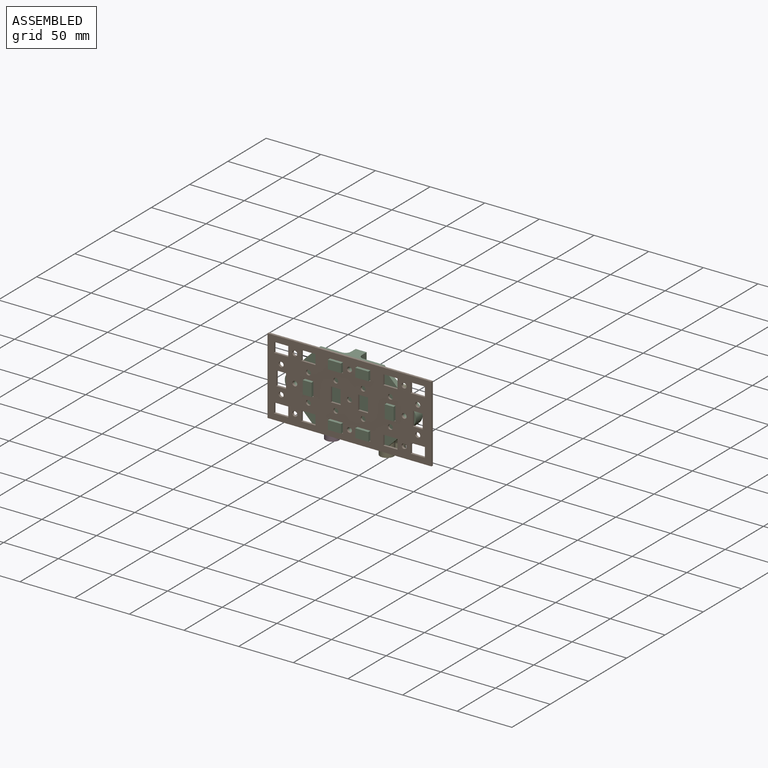
[diagram: assembled view]
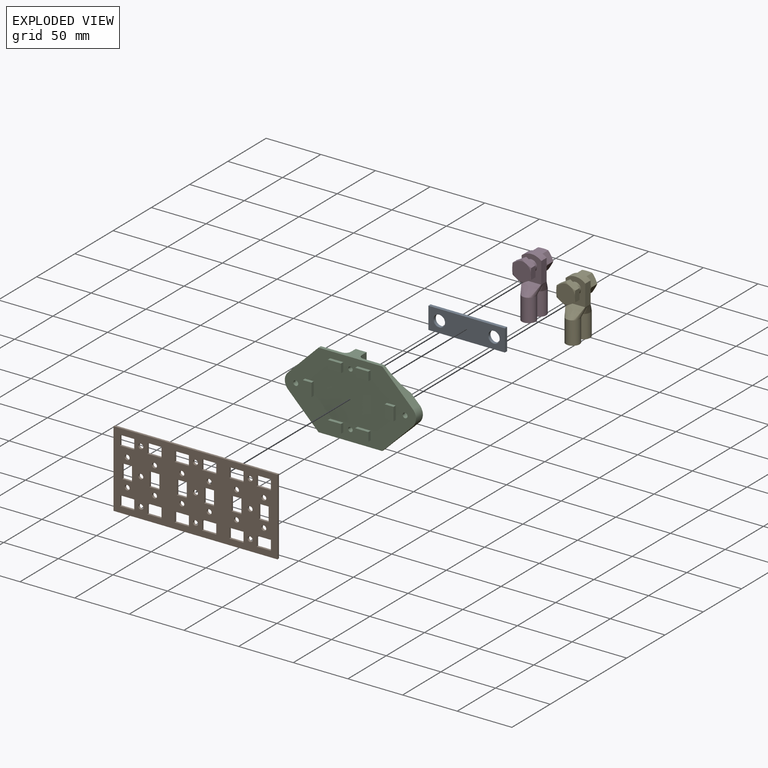
[diagram: exploded view]
GUIDED TOUR — FREECAD ASSEMBLY "PIM_cable_holder_busbar"

This assembly has 5 components, labeled P0..P4 below (a component is one placed body or linked part; the same part can appear more than once), held together by 0 modeled joints plus 8 derived contact edges. A joint is a constraint between two components; its type names the relative motion it leaves free:
  CONTACT — a derived adjacency edge — the two components touch in the source model (clearance under 2% of the assembly's diagonal); it is measured from the geometry, not a modeled constraint.
Axis/direction vectors are unit vectors and 'through' points are millimeter coordinates, both in the assembly's world frame.

MATES
  1. CONTACT "contact_0_2": P0 <-> P2, contact direction (0.000, -1.000, 0.000) through (40.17, 35.13, 34.25) mm (derived from contact, not a modeled constraint)
  2. CONTACT "contact_0_3": P0 <-> P3, contact direction (0.000, 1.000, 0.000) through (44.19, 35.24, 25.57) mm (derived from contact, not a modeled constraint)
  3. CONTACT "contact_0_4": P0 <-> P4, contact direction (0.000, 1.000, 0.000) through (94.19, 35.24, 25.57) mm (derived from contact, not a modeled constraint)
  4. CONTACT "contact_1_2": P1 <-> P2, contact direction (0.000, 1.000, 0.000) through (74.70, 26.15, -2.92) mm (derived from contact, not a modeled constraint)
  5. CONTACT "contact_1_3": P1 <-> P3, contact direction (0.000, 1.000, 0.000) through (41.51, 27.58, 18.09) mm (derived from contact, not a modeled constraint)
  6. CONTACT "contact_1_4": P1 <-> P4, contact direction (0.000, 1.000, 0.000) through (91.51, 27.58, 18.09) mm (derived from contact, not a modeled constraint)
  7. CONTACT "contact_2_3": P2 <-> P3, contact direction (-1.000, 0.000, 0.000) through (57.69, 34.85, 29.02) mm (derived from contact, not a modeled constraint)
  8. CONTACT "contact_2_4": P2 <-> P4, contact direction (1.000, 0.000, 0.000) through (107.69, 34.85, 29.02) mm (derived from contact, not a modeled constraint)

ASSEMBLY ORDER
  1. P2 — the base component [order heuristic]
  2. P0 [order verified]
  3. P1 [order verified]
  4. P3 — core [order heuristic]
  5. P4 — core [order heuristic]
Order-tag legend:
  [order verified] — this step's position reverses a verified removal order: the component was checked to insert without passing through the ones already placed.
  [order heuristic] — the first 3 components form the assembly's core: parts whose collision-free extraction could not be verified, listed in mate-graph order.

Of the 5 components, 5 carry a construction recipe — the FreeCAD feature program (sketches with constraints, then the solid features that consume them) that regenerates the part from scratch, quoted from this document or from the linked companion document it references; the rest are supplied as boundary geometry only. The tour below walks the components in assembly order: each is shown spotlighted twice — in the assembled view, then in the exploded view, where a leader line traces a displaced component back to its assembled socket (components that stay in place when exploded have no leader line; saturated green if recipe-attached, orange if geometry-only; every other component desaturated gray) — followed by its recipe or geometry summary and the mates that hold it.
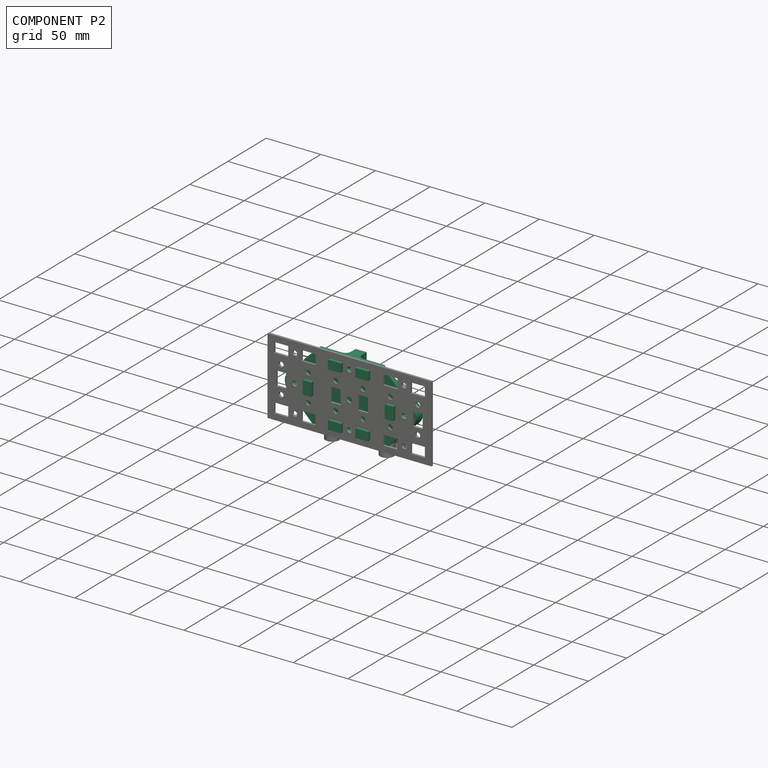
[diagram: component P2 — assembled]
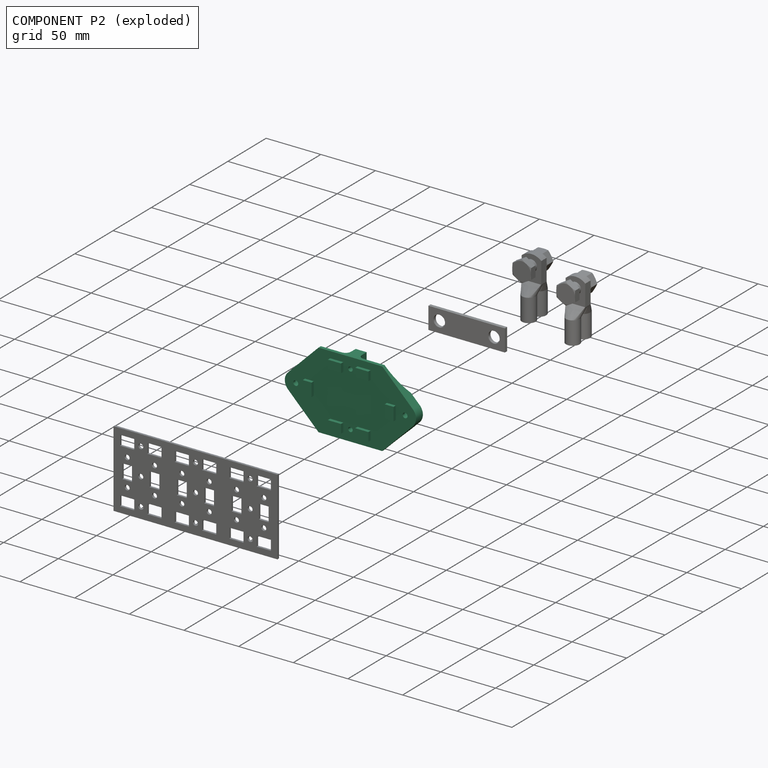
[diagram: component P2 — exploded]
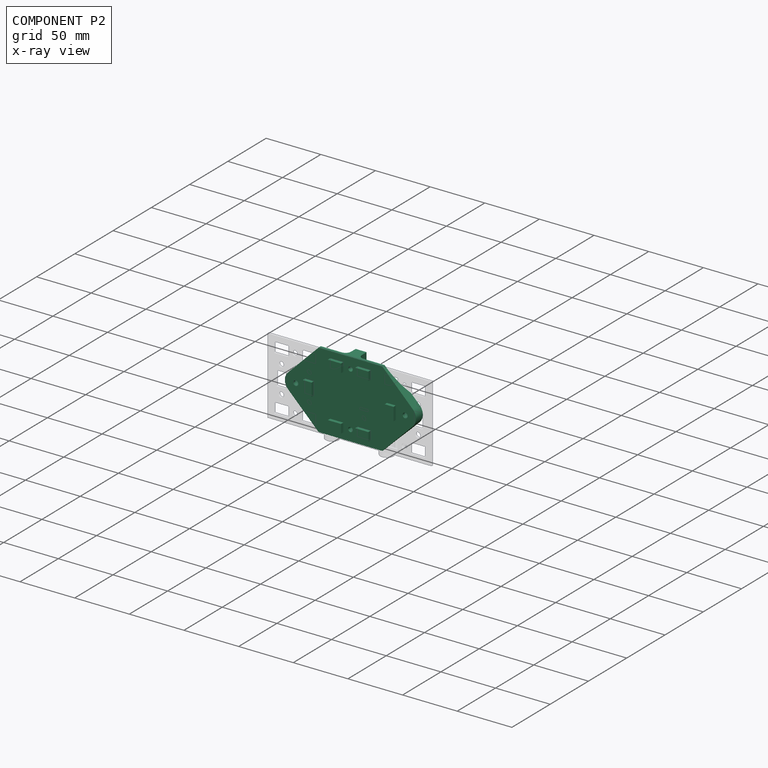
[diagram: component P2 — x-ray view]
COMPONENT P2 — recipe-attached ("holder001", modeled in this document).
Held by: resting contact with P0 (derived edge); resting contact with P1 (derived edge); resting contact with P3 (derived edge); resting contact with P4 (derived edge).
Construction recipe (the document's own serialized feature program — sketch geometry with constraints, then the solid features built on it; lengths are millimeters unless a unit is written):

FEATURE [PartDesign::SubShapeBinder] Binder
  BindCopyOnChange = 0
  BindMode = 0
  ClaimChildren = false
  Context = -> Part [Body004.Binder.]
  Fuse = false
  MakeFace = true
  OffsetFill = false
  OffsetIntersection = false
  OffsetJoinType = 0
  OffsetOpenResult = false
  PartialLoad = false
  Refine = true
  Relative = true
  Support = -> [Body[LinearPattern.Face98]]
  _Version = 2
FEATURE [Sketcher::SketchObject] Sketch003
  ArcFitTolerance = 1e-06
  AttachmentSupport = -> [Binder]
  ExternalGeometry = -> [Binder]
  FullyConstrained = true
  MakeInternals = false
  MapMode = 5
  Placement = pos=(0,2,-9e-16) rot=(0,0.707107,0.707107;3.14159rad)
  sketch-geometry (11):
    g0: LineSegment StartX=-50 StartY=-35 StartZ=0 EndX=-20.8579 EndY=-35 EndZ=0
    g1: LineSegment StartX=-20.8579 StartY=-35 StartZ=0 EndX=7.07107 EndY=-7.07107 EndZ=0
    g2: ArcOfCircle CenterX=0 CenterY=0 CenterZ=0 NormalX=0 NormalY=0 NormalZ=1 AngleXU=0 Radius=10 StartAngle=5.49779 EndAngle=7.06858
    g3: LineSegment StartX=7.07107 StartY=7.07107 StartZ=0 EndX=-20.8579 EndY=35 EndZ=0
    g4: LineSegment StartX=-20.8579 StartY=35 StartZ=0 EndX=-50 EndY=35 EndZ=0
    g5: LineSegment StartX=-50 StartY=-35 StartZ=0 EndX=-50 EndY=-27.05 EndZ=0
    g6: Circle CenterX=0 CenterY=0 CenterZ=0 NormalX=0 NormalY=0 NormalZ=1 AngleXU=0 Radius=2.25
    g7: ArcOfCircle CenterX=-50 CenterY=-25 CenterZ=0 NormalX=0 NormalY=0 NormalZ=1 AngleXU=0 Radius=2.05 StartAngle=4.71239 EndAngle=7.85398
    g8: LineSegment StartX=-50 StartY=-22.95 StartZ=0 EndX=-50 EndY=22.95 EndZ=0
    g9: ArcOfCircle CenterX=-50 CenterY=25 CenterZ=0 NormalX=0 NormalY=0 NormalZ=1 AngleXU=0 Radius=2.05 StartAngle=4.71239 EndAngle=7.85398
    g10: LineSegment StartX=-50 StartY=27.05 StartZ=0 EndX=-50 EndY=35 EndZ=0
  constraints (28):
    c: Symmetric(g-4,g-4,g0)
    c: PointOnObject(g0,g-4)
    c: Coincident(g0,g1)
    c: Coincident(g2,g-1)
    c: PointOnObject(g3,g-5)
    c: Coincident(g4,g3)
    c: Symmetric(g-5,g-5,g4)
    c: Coincident(g5,g0)
    c: Coincident(g10,g4)
    c: Coincident(g6,g2)
    c: Tangent(g6,g-3)
    c: Vertical(g0,g3)
    c: Angle(g-4,g1) = 0.785398
    c: Radius(g2) = 10
    c: Tangent(g2,g1) = -1.5708
    c: Tangent(g3,g2) = -1.5708
    c: Coincident(g7,g-7)
    c: Coincident(g5,g7)
    c: Vertical(g8)
    c: Vertical(g5)
    c: Coincident(g9,g-8)
    c: Coincident(g8,g9)
    c: Coincident(g10,g9)
    c: Vertical(g10)
    c: Vertical(g8,g9)
    c: Coincident(g7,g8)
    c: Equal(g9,g7)
    c: Radius(g7) = 2.05
FEATURE [PartDesign::Pad] Pad003
  Direction = (0,1,-2e-16)
  Length = 9
  Length2 = 10
  Profile = -> Sketch003
  ReferenceAxis = -> Sketch003 [N_Axis]
  Refine = true
  Suppressed = false
  Type = 0
FEATURE [Sketcher::SketchObject] Sketch004
  ArcFitTolerance = 1e-06
  AttachmentSupport = -> [Pad003]
  FullyConstrained = true
  MakeInternals = false
  MapMode = 5
  Placement = pos=(0,11,0) rot=(0,0.707107,0.707107;3.14159rad)
  sketch-geometry (8):
    g0: Circle CenterX=0 CenterY=0 CenterZ=0 NormalX=0 NormalY=0 NormalZ=1 AngleXU=0 Radius=4.35
    g1: LineSegment StartX=-16.1232 StartY=-5.125 StartZ=0 EndX=-16.1232 EndY=5.125 EndZ=0
    g2: LineSegment StartX=-16.1232 StartY=5.125 StartZ=0 EndX=-25 EndY=10.25 EndZ=0
    g3: LineSegment StartX=-25 StartY=10.25 StartZ=0 EndX=-33.8768 EndY=5.125 EndZ=0
    g4: LineSegment StartX=-33.8768 StartY=5.125 StartZ=0 EndX=-33.8768 EndY=-5.125 EndZ=0
    g5: LineSegment StartX=-33.8768 StartY=-5.125 StartZ=0 EndX=-25 EndY=-10.25 EndZ=0
    g6: LineSegment StartX=-25 StartY=-10.25 StartZ=0 EndX=-16.1232 EndY=-5.125 EndZ=0
    g7: Circle [constr] CenterX=-25 CenterY=0 CenterZ=0 NormalX=0 NormalY=0 NormalZ=1 AngleXU=0 Radius=10.25
  constraints (19):
    c: Diameter(g0) = 8.7
    c: Coincident(g0,g-1)
    c: Coincident(g1,g2)
    c: Coincident(g2,g3)
    c: Coincident(g3,g4)
    c: Coincident(g4,g5)
    c: Coincident(g5,g6)
    c: Coincident(g6,g1)
    c: Equal(g1, g2-g6) x5
    c: PointOnObject(g1,g7)
    c: PointOnObject(g2,g7)
    c: PointOnObject(g3,g7)
    c: PointOnObject(g4,g7)
    c: PointOnObject(g5,g7)
    c: PointOnObject(g6,g7)
    c: Vertical(g1)
    c: DistanceY(g5,g2) = 20.5
    c: PointOnObject(g7,g-1)
    c: DistanceX(g7,g0) = 25
FEATURE [PartDesign::Pocket] Pocket
  BaseFeature = -> Pad003
  Direction = (0,-1,2e-16)
  Length = 6
  Length2 = 5
  Profile = -> Sketch004
  ReferenceAxis = -> Sketch004 [N_Axis]
  Refine = true
  Suppressed = false
  Type = 0
FEATURE [Sketcher::SketchObject] Sketch005
  ArcFitTolerance = 1e-06
  AttachmentSupport = -> [Pocket]
  ExternalGeometry = -> [Pocket]
  FullyConstrained = true
  MakeInternals = false
  MapMode = 5
  Placement = pos=(50,0,0) rot=(0.57735,0.57735,0.57735;2.0944rad)
  sketch-geometry (3):
    g0: LineSegment StartX=11 StartY=-35 StartZ=0 EndX=5 EndY=-35 EndZ=0
    g1: LineSegment StartX=11 StartY=-15 StartZ=0 EndX=11 EndY=-35 EndZ=0
    g2: ArcOfCircle CenterX=39.9977 CenterY=-34.5993 CenterZ=0 NormalX=0 NormalY=0 NormalZ=1 AngleXU=0 Radius=35 StartAngle=2.54723 EndAngle=3.15304
  constraints (9):
    c: Coincident(g-5,g0)
    c: PointOnObject(g0,g-4)
    c: PointOnObject(g1,g-5)
    c: Coincident(g1,g0)
    c: DistanceX(g-4,g0) = 3
    c: Coincident(g2,g1)
    c: Coincident(g2,g0)
    c: DistanceY(g1,g1) = 20
    c: Radius(g2) = 35
FEATURE [PartDesign::Pocket] Pocket001
  BaseFeature = -> Pocket
  Direction = (-1,0,0)
  Length = 50
  Length2 = -5
  Profile = -> Sketch005
  ReferenceAxis = -> Sketch005 [N_Axis]
  Refine = true
  Suppressed = false
  Type = 4
FEATURE [Sketcher::SketchObject] Sketch007
  ArcFitTolerance = 1e-06
  ExternalGeometry = -> [Binder]
  FullyConstrained = true
  MakeInternals = false
  MapMode = 5
  Placement = pos=(0,2,0) rot=(1,0,0;1.5708rad)
  sketch-geometry (8):
    g0: LineSegment StartX=31.5 StartY=-29 StartZ=0 EndX=43.5 EndY=-29 EndZ=0
    g1: LineSegment StartX=43.5 StartY=-29 StartZ=0 EndX=43.5 EndY=-21 EndZ=0
    g2: LineSegment StartX=43.5 StartY=-21 StartZ=0 EndX=31.5 EndY=-21 EndZ=0
    g3: LineSegment StartX=31.5 StartY=-21 StartZ=0 EndX=31.5 EndY=-29 EndZ=0
    g4: LineSegment StartX=16.5 StartY=-6 StartZ=0 EndX=16.5 EndY=0 EndZ=0
    g5: LineSegment StartX=16.5 StartY=0 StartZ=0 EndX=8.5 EndY=0 EndZ=0
    g6: LineSegment StartX=8.5 StartY=0 StartZ=0 EndX=8.5 EndY=-6 EndZ=0
    g7: LineSegment StartX=8.5 StartY=-6 StartZ=0 EndX=16.5 EndY=-6 EndZ=0
  constraints (24):
    c: Coincident(g0,g1)
    c: Coincident(g1,g2)
    c: Coincident(g2,g3)
    c: Coincident(g3,g0)
    c: Horizontal(g0)
    c: Horizontal(g2)
    c: Vertical(g1)
    c: Vertical(g3)
    c: DistanceY(g1,g-4) = 0.5
    c: DistanceX(g1,g-4) = 0.5
    c: DistanceX(g-3,g0) = 0.5
    c: DistanceY(g-3,g0) = 0.5
    c: Coincident(g4,g5)
    c: Coincident(g5,g6)
    c: Coincident(g6,g7)
    c: Coincident(g7,g4)
    c: Vertical(g4)
    c: Vertical(g6)
    c: Horizontal(g5)
    c: Horizontal(g7)
    c: PointOnObject(g5,g-1)
    c: Distance(g5,g-6) = 0.5
    c: DistanceX(g4,g-5) = 0.5
    c: DistanceY(g-6,g6) = 0.5
FEATURE [PartDesign::Pad] Pad005
  BaseFeature = -> Pocket001
  Direction = (0,-1,2e-16)
  Length = 3
  Length2 = 10
  Profile = -> Sketch007
  ReferenceAxis = -> Sketch007 [N_Axis]
  Refine = true
  Suppressed = false
  Type = 0
FEATURE [Sketcher::SketchObject] Sketch008
  ArcFitTolerance = 1e-06
  AttachmentSupport = -> [XY_Plane005]
  FullyConstrained = true
  MakeInternals = false
  MapMode = 5
  sketch-geometry (7):
    g0: LineSegment StartX=14.9232 StartY=11 StartZ=0 EndX=14.9232 EndY=14.1 EndZ=0
    g1: LineSegment StartX=14.9232 StartY=14.1 StartZ=0 EndX=15.9232 EndY=14.1 EndZ=0
    g2: LineSegment StartX=15.9232 StartY=14.1 StartZ=0 EndX=15.2893 EndY=15.1981 EndZ=0
    g3: LineSegment StartX=13.4232 StartY=14.6981 StartZ=0 EndX=13.4232 EndY=12.5 EndZ=0
    g4: LineSegment StartX=14.9232 StartY=11 StartZ=0 EndX=11.9232 EndY=11 EndZ=0
    g5: ArcOfCircle CenterX=11.9232 CenterY=12.5 CenterZ=0 NormalX=0 NormalY=0 NormalZ=1 AngleXU=0 Radius=1.5 StartAngle=4.71239 EndAngle=6.28319
    g6: ArcOfCircle CenterX=14.4232 CenterY=14.6981 CenterZ=0 NormalX=0 NormalY=0 NormalZ=1 AngleXU=0 Radius=1 StartAngle=0.523599 EndAngle=3.14159
  constraints (19):
    c: PointOnObject(g0,g-4)
    c: Vertical(g0)
    c: Coincident(g1,g0)
    c: Horizontal(g1)
    c: Vertical(g3)
    c: Coincident(g4,g0)
    c: PointOnObject(g4,g-4)
    c: Tangent(g6,g2) = -1.5708
    c: Tangent(g6,g3) = -1.5708
    c: Tangent(g5,g3) = 1.5708
    c: Tangent(g5,g4) = 1.5708
    c: Radius(g5) = 1.5
    c: Distance(g0,g3) = 1.5
    c: DistanceX(g0,g-3) = 1.2
    c: Angle(g2,g1) = 1.0472
    c: Distance(g1,g1) = 1
    c: Coincident(g2,g1)
    c: Radius(g6) = 1
    c: DistanceY(g0,g0) = 3.1
FEATURE [PartDesign::SubShapeBinder] Binder001
  BindCopyOnChange = 0
  BindMode = 0
  ClaimChildren = false
  Fuse = false
  MakeFace = true
  OffsetFill = false
  OffsetIntersection = false
  OffsetJoinType = 0
  OffsetOpenResult = false
  PartialLoad = false
  Refine = true
  Relative = true
  Support = -> [Body[LinearPattern.Face98]]
  _Version = 2
FEATURE [Sketcher::SketchObject] Sketch009
  ArcFitTolerance = 1e-06
  AttachmentSupport = -> [XZ_Plane008]
  ExternalGeometry = -> [Binder001]
  FullyConstrained = true
  MakeInternals = false
  MapMode = 5
  Placement = pos=(0,0,0) rot=(1,0,0;1.5708rad)
  sketch-geometry (23):
    g0: GeomPoint [constr] X=50 Y=-1.3e-15 Z=0
    g1: LineSegment StartX=40 StartY=-13 StartZ=0 EndX=40.1 EndY=-13 EndZ=0
    g2: LineSegment StartX=60 StartY=-13 StartZ=0 EndX=60 EndY=13 EndZ=0
    g3: LineSegment StartX=60 StartY=13 StartZ=0 EndX=59.9 EndY=13 EndZ=0
    g4: LineSegment StartX=40 StartY=13 StartZ=0 EndX=40 EndY=-13 EndZ=0
    g5: GeomPoint [constr] X=50 Y=-1.3e-15 Z=0
    g6: LineSegment StartX=45 StartY=-35 StartZ=0 EndX=55 EndY=-35 EndZ=0
    g7: LineSegment StartX=55 StartY=-35 StartZ=0 EndX=55 EndY=-17.9 EndZ=0
    g8: LineSegment StartX=55 StartY=35 StartZ=0 EndX=45 EndY=35 EndZ=0
    g9: LineSegment StartX=45 StartY=35 StartZ=0 EndX=45 EndY=17.9 EndZ=0
    g10: GeomPoint [constr] X=50 Y=-1.3e-15 Z=0
    g11: LineSegment StartX=40.1 StartY=13 StartZ=0 EndX=40 EndY=13 EndZ=0
    g12: LineSegment StartX=45 StartY=-17.9 StartZ=0 EndX=45 EndY=-35 EndZ=0
    g13: LineSegment StartX=55 StartY=17.9 StartZ=0 EndX=55 EndY=35 EndZ=0
    g14: LineSegment StartX=59.9 StartY=-13 StartZ=0 EndX=60 EndY=-13 EndZ=0
    g15: ArcOfCircle CenterX=59.9 CenterY=17.9 CenterZ=0 NormalX=0 NormalY=0 NormalZ=1 AngleXU=0 Radius=4.9 StartAngle=3.14159 EndAngle=4.71239
    g16: ArcOfCircle CenterX=40.1 CenterY=17.9 CenterZ=0 NormalX=0 NormalY=0 NormalZ=1 AngleXU=0 Radius=4.9 StartAngle=4.71239 EndAngle=6.28319
    g17: GeomPoint [constr] X=45 Y=13 Z=0
    g18: ArcOfCircle CenterX=40.1 CenterY=-17.9 CenterZ=0 NormalX=0 NormalY=0 NormalZ=1 AngleXU=0 Radius=4.9 StartAngle=0 EndAngle=1.5708
    g19: GeomPoint [constr] X=45 Y=-13 Z=0
    g20: ArcOfCircle CenterX=59.9 CenterY=-17.9 CenterZ=0 NormalX=0 NormalY=0 NormalZ=1 AngleXU=0 Radius=4.9 StartAngle=1.5708 EndAngle=3.14159
    g21: Circle CenterX=50 CenterY=-25 CenterZ=0 NormalX=0 NormalY=0 NormalZ=1 AngleXU=0 Radius=2.25
    g22: Circle CenterX=50 CenterY=25 CenterZ=0 NormalX=0 NormalY=0 NormalZ=1 AngleXU=0 Radius=2.25
  constraints (53):
    c: Coincident(g0,g-5)
    c: Coincident(g14,g2)
    c: Coincident(g2,g3)
    c: Coincident(g11,g4)
    c: Coincident(g4,g1)
    c: Horizontal(g1)
    c: Horizontal(g3)
    c: Vertical(g2)
    c: Vertical(g4)
    c: Symmetric(g3,g1,g5)
    c: Distance(g2,g4) = 20
    c: Distance(g1,g11) = 26
    c: Coincident(g5,g0)
    c: Coincident(g6,g7)
    c: Coincident(g13,g8)
    c: Coincident(g8,g9)
    c: Coincident(g12,g6)
    c: Horizontal(g6)
    c: Horizontal(g8)
    c: Vertical(g7)
    c: Vertical(g9)
    c: Symmetric(g8,g6,g10)
    c: Distance(g7,g12) = 10
    c: Distance(g6,g8) = 70
    c: Coincident(g10,g0)
    c: Vertical(g13)
    c: Vertical(g12)
    c: Horizontal(g11)
    c: Horizontal(g14)
    c: Vertical(g17,g19)
    c: Tangent(g3,g15) = 1.5708
    c: Tangent(g13,g15) = 1.5708
    c: PointOnObject(g17,g9)
    c: PointOnObject(g17,g11)
    c: Tangent(g9,g16) = 1.5708
    c: Tangent(g11,g16) = 1.5708
    c: PointOnObject(g19,g1)
    c: PointOnObject(g19,g12)
    c: Tangent(g1,g18) = 1.5708
    c: Tangent(g12,g18) = 1.5708
    c: Tangent(g14,g20) = 1.5708
    c: Tangent(g7,g20) = 1.5708
    c: Equal(g20,g15)
    c: Equal(g15,g16)
    c: Equal(g16,g18)
    c: Horizontal(g14,g1)
    c: Horizontal(g11,g3)
    c: Equal(g1,g14)
    c: Radius(g18) = 4.9
    c: Coincident(g21,g-4)
    c: Equal(g21,g-4)
    c: Coincident(g22,g-3)
    c: Equal(g22,g-3)
FEATURE [PartDesign::Pad] Pad007
  Direction = (0,-1,2e-16)
  Length = 8
  Length2 = 10
  Placement = pos=(0,0,0) rot=(1,0,0;1.5708rad)
  Profile = -> Sketch009
  ReferenceAxis = -> Sketch009 [N_Axis]
  Refine = true
  Suppressed = false
  Type = 0
FEATURE [Sketcher::SketchObject] Sketch010
  ArcFitTolerance = 1e-06
  AttachmentSupport = -> [Pad007]
  ExternalGeometry = -> [Pad007]
  FullyConstrained = true
  MakeInternals = false
  MapMode = 5
  Placement = pos=(40,0,0) rot=(0.707107,0,-0.707107;3.14159rad)
  sketch-geometry (5):
    g0: LineSegment StartX=-10.25 StartY=5.1 StartZ=0 EndX=10.25 EndY=5.1 EndZ=0
    g1: LineSegment StartX=10.25 StartY=5.1 StartZ=0 EndX=10.25 EndY=8 EndZ=0
    g2: LineSegment StartX=10.25 StartY=8 StartZ=0 EndX=-10.25 EndY=8 EndZ=0
    g3: LineSegment StartX=-10.25 StartY=8 StartZ=0 EndX=-10.25 EndY=5.1 EndZ=0
    g4: GeomPoint [constr] X=0 Y=6.55 Z=0
  constraints (13):
    c: Coincident(g0,g1)
    c: Coincident(g1,g2)
    c: Coincident(g2,g3)
    c: Coincident(g3,g0)
    c: Horizontal(g0)
    c: Horizontal(g2)
    c: Vertical(g1)
    c: Vertical(g3)
    c: Symmetric(g2,g0,g4)
    c: PointOnObject(g4,g-2)
    c: PointOnObject(g1,g-3)
    c: DistanceX(g0,g0) = 20.5
    c: Distance(g3,g3) = 2.9
FEATURE [PartDesign::Pocket] Pocket002
  BaseFeature = -> Pad007
  Direction = (1,0,2e-16)
  Length = 5
  Length2 = 5
  Placement = pos=(0,0,0) rot=(1,0,0;1.5708rad)
  Profile = -> Sketch010
  ReferenceAxis = -> Sketch010 [N_Axis]
  Refine = true
  Suppressed = false
  Type = 2
FEATURE [Sketcher::SketchObject] Sketch011
  ArcFitTolerance = 1e-06
  AttachmentSupport = -> [Pocket002]
  ExternalGeometry = -> [Pocket002]
  FullyConstrained = true
  MakeInternals = false
  MapMode = 5
  Placement = pos=(45,0,0) rot=(0.707107,0,-0.707107;3.14159rad)
  sketch-geometry (8):
    g0: LineSegment StartX=-35 StartY=3 StartZ=0 EndX=-19.9 EndY=3 EndZ=0
    g1: ArcOfCircle CenterX=-19.9 CenterY=-6.435 CenterZ=0 NormalX=0 NormalY=0 NormalZ=1 AngleXU=0 Radius=9.435 StartAngle=0.750542 EndAngle=1.5708
    g2: LineSegment StartX=-35 StartY=3 StartZ=0 EndX=-35 EndY=-8e-15 EndZ=0
    g3: LineSegment StartX=-35 StartY=-7.8e-15 StartZ=0 EndX=-13 EndY=-7.8e-15 EndZ=0
    g4: LineSegment StartX=13 StartY=8.08e-14 StartZ=0 EndX=35 EndY=7.8e-15 EndZ=0
    g5: LineSegment StartX=35 StartY=7.8e-15 StartZ=0 EndX=35 EndY=3 EndZ=0
    g6: LineSegment StartX=35 StartY=3 StartZ=0 EndX=19.9 EndY=3 EndZ=0
    g7: ArcOfCircle CenterX=19.9 CenterY=-6.435 CenterZ=0 NormalX=0 NormalY=0 NormalZ=1 AngleXU=0 Radius=9.435 StartAngle=1.5708 EndAngle=2.39105
  constraints (21):
    c: PointOnObject(g0,g-7)
    c: Horizontal(g0)
    c: Coincident(g1,g-6)
    c: Coincident(g2,g0)
    c: Coincident(g2,g-7)
    c: Coincident(g3,g2)
    c: PointOnObject(g3,g1)
    c: Horizontal(g3)
    c: DistanceY(g0,g-7) = 5
    c: Tangent(g1,g0) = 1.5708
    c: DistanceX(g1,g-9) = 2
    c: Coincident(g4,g-4)
    c: Coincident(g4,g-8)
    c: Coincident(g5,g4)
    c: PointOnObject(g5,g-8)
    c: Horizontal(g6)
    c: Coincident(g7,g4)
    c: Tangent(g7,g6) = -1.5708
    c: Coincident(g5,g6)
    c: Equal(g2,g5)
    c: Equal(g0,g6)
FEATURE [PartDesign::Pocket] Pocket003
  BaseFeature = -> Pocket002
  Direction = (1,0,2e-16)
  Length = 5
  Length2 = 5
  Midplane = true
  Placement = pos=(0,0,0) rot=(1,0,0;1.5708rad)
  Profile = -> Sketch011
  ReferenceAxis = -> Sketch011 [N_Axis]
  Refine = true
  Suppressed = false
  Type = 1
FEATURE [PartDesign::Body] Body005  label="holder_lid"
  AllowCompound = false
  Group = -> [Sketch009,Binder001,Pad007,Sketch010,Pocket002,Sketch011,Pocket003]
  Origin = -> Origin008
  Placement = pos=(0,19,0) rot=(0,0,1;0rad)
  Tip = -> Pocket003
FEATURE [PartDesign::Fillet] Fillet
  Base = -> Pad005 [Edge70]
  BaseFeature = -> Pad005
  Radius = 5
  Refine = true
  SupportTransform = false
  Suppressed = false
  UseAllEdges = false
FEATURE [Sketcher::SketchObject] Sketch012
  ArcFitTolerance = 1e-06
  AttachmentSupport = -> [Fillet]
  ExternalGeometry = -> [Fillet]
  FullyConstrained = true
  MakeInternals = false
  MapMode = 5
  Placement = pos=(0,11,0) rot=(0,0.707107,0.707107;3.14159rad)
  sketch-geometry (4):
    g0: LineSegment StartX=-39 StartY=-10.25 StartZ=0 EndX=-39 EndY=-12.25 EndZ=0
    g1: LineSegment StartX=-39 StartY=-12.25 StartZ=0 EndX=-19 EndY=-12.25 EndZ=0
    g2: LineSegment StartX=-19 StartY=-12.25 StartZ=0 EndX=-19 EndY=-10.25 EndZ=0
    g3: LineSegment StartX=-19 StartY=-10.25 StartZ=0 EndX=-39 EndY=-10.25 EndZ=0
  constraints (12):
    c: Coincident(g0,g1)
    c: Coincident(g1,g2)
    c: Coincident(g2,g3)
    c: Coincident(g3,g0)
    c: Vertical(g0)
    c: Vertical(g2)
    c: Horizontal(g1)
    c: Horizontal(g3)
    c: Distance(g0,g2) = 20
    c: Distance(g1,g3) = 2
    c: Distance(g-1,g3) = 10.25
    c: DistanceX(g-3,g0) = 1
FEATURE [PartDesign::Pad] Pad008
  BaseFeature = -> Fillet
  Direction = (0,1,-2e-16)
  Length = 2
  Length2 = 10
  Profile = -> Sketch012
  ReferenceAxis = -> Sketch012 [N_Axis]
  Refine = true
  Suppressed = false
  Type = 0
FEATURE [PartDesign::Fillet] Fillet001
  Base = -> Pad008 [Edge17,Edge18]
  BaseFeature = -> Pad008
  Radius = 1.9
  Refine = true
  SupportTransform = false
  Suppressed = false
  UseAllEdges = false
FEATURE [PartDesign::Pad] Pad009
  BaseFeature = -> Fillet001
  Direction = (0,0,1)
  Length = 7
  Length2 = 10
  Profile = -> Sketch008
  ReferenceAxis = -> Sketch008 [N_Axis]
  Refine = true
  Reversed = true
  Suppressed = false
  Type = 0
FEATURE [PartDesign::Mirrored] Mirrored
  BaseFeature = -> Pad009
  MirrorPlane = -> XY_Plane005
  Originals = -> [Pocket001,Pad005,Fillet,Pad008,Fillet001,Pad009]
  Refine = true
  Suppressed = false
  TransformMode = 0
FEATURE [PartDesign::Mirrored] Mirrored001
  BaseFeature = -> Mirrored
  MirrorPlane = -> Mirrored [Face11]
  Originals = -> [Mirrored]
  Refine = true
  Suppressed = false
  TransformMode = 1
FEATURE [PartDesign::Body] Body004  label="holder002"
  AllowCompound = false
  Group = -> [Binder,Sketch003,Pad003,Sketch004,Pocket,Sketch005,Pocket001,Sketch007,Pad005,Sketch008,Fillet,Sketch012,Pad008,Fillet001,Pad009,Mirrored,Mirrored001]
  Origin = -> Origin005
  Tip = -> Mirrored001
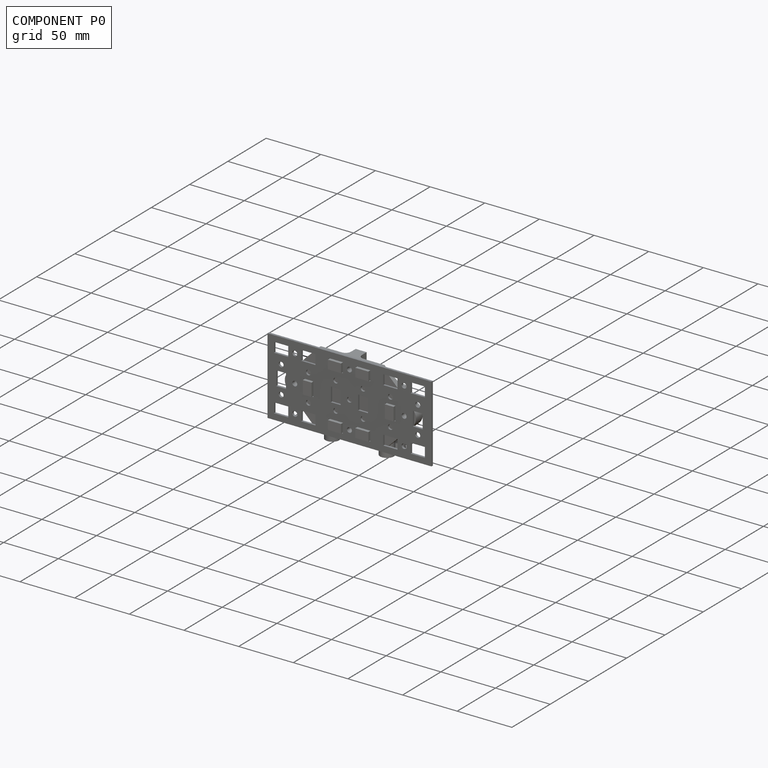
[diagram: component P0 — assembled]
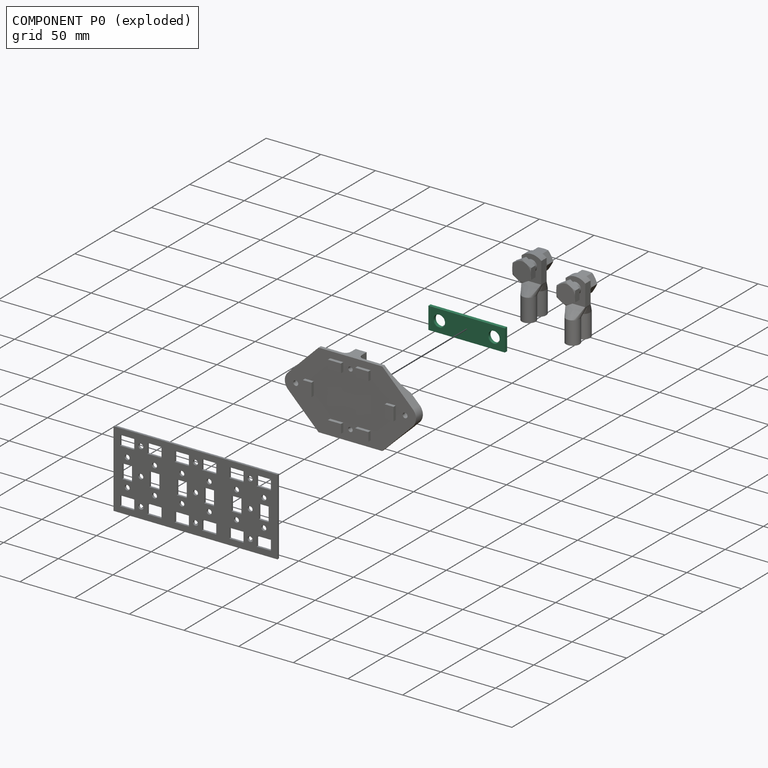
[diagram: component P0 — exploded]
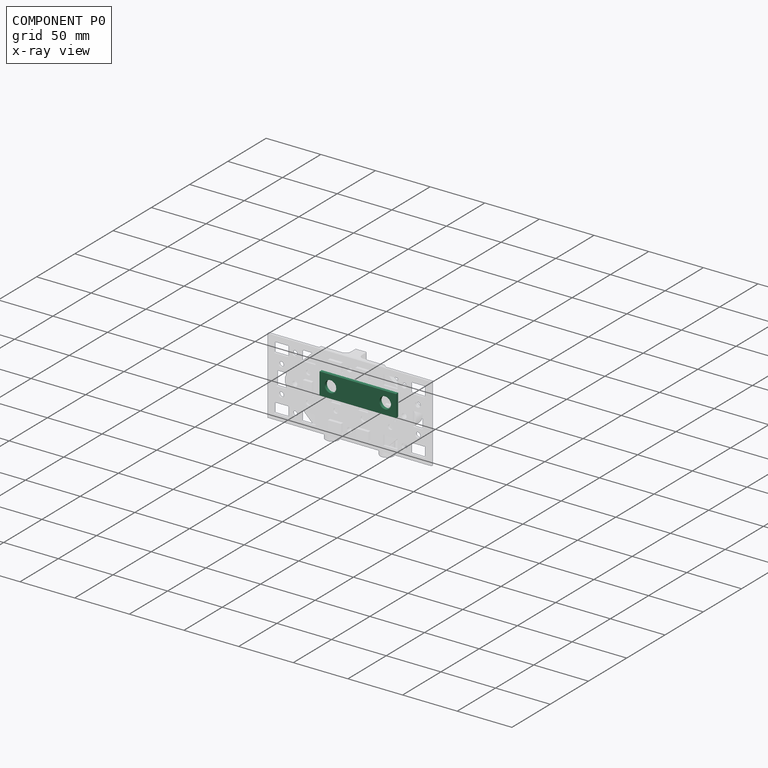
[diagram: component P0 — x-ray view]
COMPONENT P0 — recipe-attached ("Busbar001", modeled in this document).
Held by: resting contact with P2 (derived edge); resting contact with P3 (derived edge); resting contact with P4 (derived edge).
Construction recipe (the document's own serialized feature program — sketch geometry with constraints, then the solid features built on it; lengths are millimeters unless a unit is written):

FEATURE [Sketcher::SketchObject] Sketch002
  ArcFitTolerance = 1e-06
  AttachmentSupport = -> [XZ_Plane002]
  FullyConstrained = true
  MakeInternals = false
  MapMode = 5
  Placement = pos=(0,0,0) rot=(1,0,0;1.5708rad)
  sketch-geometry (7):
    g0: LineSegment StartX=15 StartY=-10 StartZ=0 EndX=85 EndY=-10 EndZ=0
    g1: LineSegment StartX=85 StartY=-10 StartZ=0 EndX=85 EndY=10 EndZ=0
    g2: LineSegment StartX=85 StartY=10 StartZ=0 EndX=15 EndY=10 EndZ=0
    g3: LineSegment StartX=15 StartY=10 StartZ=0 EndX=15 EndY=-10 EndZ=0
    g4: GeomPoint [constr] X=50 Y=0 Z=0
    g5: Circle CenterX=25 CenterY=0 CenterZ=0 NormalX=0 NormalY=0 NormalZ=1 AngleXU=0 Radius=5.25
    g6: Circle CenterX=75 CenterY=0 CenterZ=0 NormalX=0 NormalY=0 NormalZ=1 AngleXU=0 Radius=5.25
  constraints (18):
    c: Coincident(g0,g1)
    c: Coincident(g1,g2)
    c: Coincident(g2,g3)
    c: Coincident(g3,g0)
    c: Horizontal(g0)
    c: Horizontal(g2)
    c: Vertical(g1)
    c: Vertical(g3)
    c: Symmetric(g2,g0,g4)
    c: Distance(g1,g3) = 70
    c: Distance(g0,g2) = 20
    c: PointOnObject(g4,g-1)
    c: Diameter(g5) = 10.5
    c: PointOnObject(g5,g-1)
    c: DistanceX(g5,g6) = 50
    c: Symmetric(g5,g6,g4)
    c: Distance(g-1,g3) = 15
    c: Equal(g5,g6)
FEATURE [PartDesign::Pad] Pad002
  Direction = (0,-1,2e-16)
  Length = 3
  Length2 = 10
  Placement = pos=(0,0,0) rot=(1,0,0;1.5708rad)
  Profile = -> Sketch002
  ReferenceAxis = -> Sketch002 [N_Axis]
  Refine = true
  Suppressed = false
  Type = 0
FEATURE [PartDesign::Body] Body002  label="Busbar"
  AllowCompound = false
  Group = -> [Sketch002,Pad002]
  Origin = -> Origin002
  Placement = pos=(0,14,0) rot=(0,0,1;0rad)
  Tip = -> Pad002
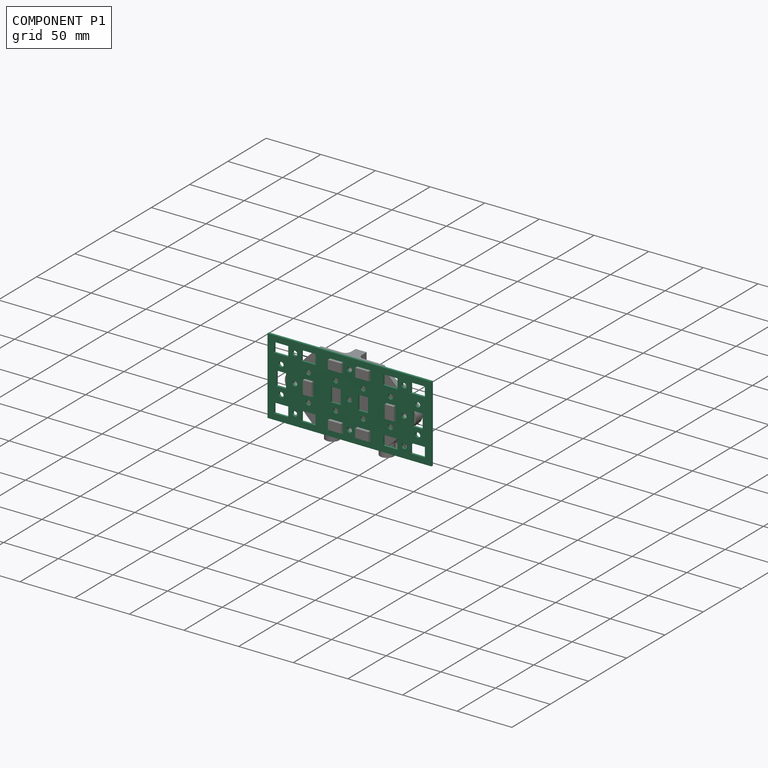
[diagram: component P1 — assembled]
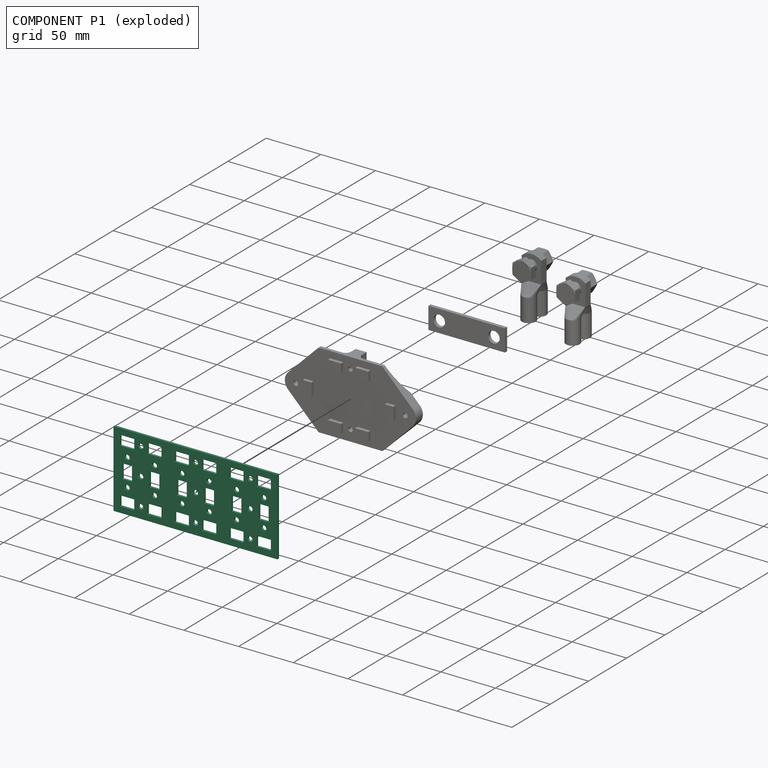
[diagram: component P1 — exploded]
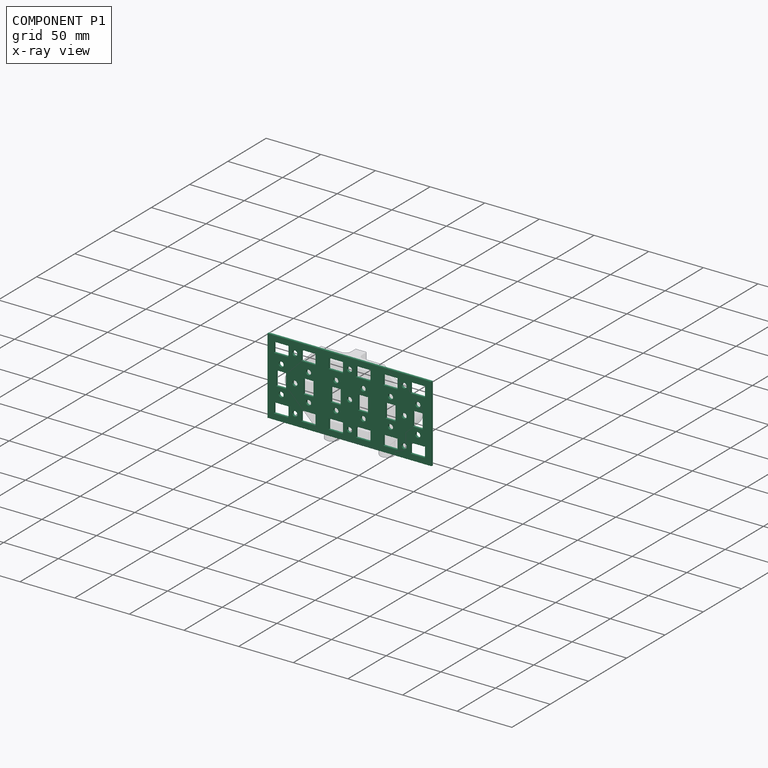
[diagram: component P1 — x-ray view]
COMPONENT P1 — recipe-attached ("baseplate001", modeled in this document).
Held by: resting contact with P2 (derived edge); resting contact with P3 (derived edge); resting contact with P4 (derived edge).
Construction recipe (the document's own serialized feature program — sketch geometry with constraints, then the solid features built on it; lengths are millimeters unless a unit is written):

FEATURE [Sketcher::SketchObject] Sketch
  ArcFitTolerance = 1e-06
  AttachmentSupport = -> [XZ_Plane]
  FullyConstrained = true
  MakeInternals = false
  MapMode = 5
  Placement = pos=(0,0,0) rot=(1,0,0;1.5708rad)
  sketch-geometry (54):
    g0: Circle CenterX=0 CenterY=-7e-16 CenterZ=0 NormalX=0 NormalY=0 NormalZ=1 AngleXU=0 Radius=2.25
    g1: Circle CenterX=0 CenterY=-25 CenterZ=0 NormalX=0 NormalY=0 NormalZ=1 AngleXU=0 Radius=2.25
    g2: Circle CenterX=0 CenterY=25 CenterZ=0 NormalX=0 NormalY=0 NormalZ=1 AngleXU=0 Radius=2.25
    g3: LineSegment [constr] StartX=-12.5 StartY=-12.5 StartZ=0 EndX=12.5 EndY=-12.5 EndZ=0
    g4: LineSegment [constr] StartX=12.5 StartY=-12.5 StartZ=0 EndX=12.5 EndY=12.5 EndZ=0
    g5: LineSegment [constr] StartX=12.5 StartY=12.5 StartZ=0 EndX=-12.5 EndY=12.5 EndZ=0
    g6: LineSegment [constr] StartX=-12.5 StartY=12.5 StartZ=0 EndX=-12.5 EndY=-12.5 EndZ=0
    g7: GeomPoint [constr] X=0 Y=-7e-16 Z=0
    g8: LineSegment [constr] StartX=-12.5 StartY=-25 StartZ=0 EndX=12.5 EndY=-25 EndZ=0
    g9: LineSegment [constr] StartX=12.5 StartY=-25 StartZ=0 EndX=12.5 EndY=25 EndZ=0
    g10: LineSegment [constr] StartX=12.5 StartY=25 StartZ=0 EndX=-12.5 EndY=25 EndZ=0
    g11: LineSegment [constr] StartX=-12.5 StartY=25 StartZ=0 EndX=-12.5 EndY=-25 EndZ=0
    g12: GeomPoint [constr] X=0 Y=-7e-16 Z=0
    g13: LineSegment StartX=-19 StartY=20.5 StartZ=0 EndX=-6 EndY=20.5 EndZ=0
    g14: LineSegment StartX=-6 StartY=20.5 StartZ=0 EndX=-6 EndY=29.5 EndZ=0
    g15: LineSegment StartX=-6 StartY=29.5 StartZ=0 EndX=-19 EndY=29.5 EndZ=0
    g16: LineSegment StartX=-19 StartY=29.5 StartZ=0 EndX=-19 EndY=20.5 EndZ=0
    g17: GeomPoint [constr] X=-12.5 Y=25 Z=0
    g18: LineSegment StartX=-19 StartY=-29.5 StartZ=0 EndX=-6 EndY=-29.5 EndZ=0
    g19: LineSegment StartX=-6 StartY=-29.5 StartZ=0 EndX=-6 EndY=-20.5 EndZ=0
    g20: LineSegment StartX=-6 StartY=-20.5 StartZ=0 EndX=-19 EndY=-20.5 EndZ=0
    g21: LineSegment StartX=-19 StartY=-20.5 StartZ=0 EndX=-19 EndY=-29.5 EndZ=0
    g22: GeomPoint [constr] X=-12.5 Y=-25 Z=0
    g23: LineSegment StartX=6 StartY=-29.5 StartZ=0 EndX=19 EndY=-29.5 EndZ=0
    g24: LineSegment StartX=19 StartY=-29.5 StartZ=0 EndX=19 EndY=-20.5 EndZ=0
    g25: LineSegment StartX=19 StartY=-20.5 StartZ=0 EndX=6 EndY=-20.5 EndZ=0
    g26: LineSegment StartX=6 StartY=-20.5 StartZ=0 EndX=6 EndY=-29.5 EndZ=0
    g27: GeomPoint [constr] X=12.5 Y=-25 Z=0
    g28: LineSegment StartX=6 StartY=29.5 StartZ=0 EndX=6 EndY=20.5 EndZ=0
    g29: LineSegment StartX=6 StartY=20.5 StartZ=0 EndX=19 EndY=20.5 EndZ=0
    g30: LineSegment StartX=19 StartY=20.5 StartZ=0 EndX=19 EndY=29.5 EndZ=0
    g31: LineSegment StartX=19 StartY=29.5 StartZ=0 EndX=6 EndY=29.5 EndZ=0
    g32: GeomPoint [constr] X=12.5 Y=25 Z=0
    g33: GeomPoint X=-12.5 Y=0 Z=0
    g34: GeomPoint X=12.5 Y=0 Z=0
    g35: LineSegment StartX=-17 StartY=6.5 StartZ=0 EndX=-17 EndY=-6.5 EndZ=0
    g36: LineSegment StartX=-17 StartY=-6.5 StartZ=0 EndX=-8 EndY=-6.5 EndZ=0
    g37: LineSegment StartX=-8 StartY=-6.5 StartZ=0 EndX=-8 EndY=6.5 EndZ=0
    g38: LineSegment StartX=-8 StartY=6.5 StartZ=0 EndX=-17 EndY=6.5 EndZ=0
    g39: GeomPoint [constr] X=-12.5 Y=0 Z=0
    g40: LineSegment StartX=8 StartY=6.5 StartZ=0 EndX=8 EndY=-6.5 EndZ=0
    g41: LineSegment StartX=8 StartY=-6.5 StartZ=0 EndX=17 EndY=-6.5 EndZ=0
    g42: LineSegment StartX=17 StartY=-6.5 StartZ=0 EndX=17 EndY=6.5 EndZ=0
    g43: LineSegment StartX=17 StartY=6.5 StartZ=0 EndX=8 EndY=6.5 EndZ=0
    g44: GeomPoint [constr] X=12.5 Y=0 Z=0
    g45: Circle CenterX=-12.5 CenterY=12.5 CenterZ=0 NormalX=0 NormalY=0 NormalZ=1 AngleXU=0 Radius=2.25
    g46: Circle CenterX=12.5 CenterY=12.5 CenterZ=0 NormalX=0 NormalY=0 NormalZ=1 AngleXU=0 Radius=2.25
    g47: Circle CenterX=12.5 CenterY=-12.5 CenterZ=0 NormalX=0 NormalY=0 NormalZ=1 AngleXU=0 Radius=2.25
    g48: Circle CenterX=-12.5 CenterY=-12.5 CenterZ=0 NormalX=0 NormalY=0 NormalZ=1 AngleXU=0 Radius=2.25
    g49: LineSegment StartX=-25 StartY=-35 StartZ=0 EndX=25 EndY=-35 EndZ=0
    g50: LineSegment StartX=25 StartY=-35 StartZ=0 EndX=25 EndY=35 EndZ=0
    g51: LineSegment StartX=25 StartY=35 StartZ=0 EndX=-25 EndY=35 EndZ=0
    g52: LineSegment StartX=-25 StartY=35 StartZ=0 EndX=-25 EndY=-35 EndZ=0
    g53: GeomPoint [constr] X=0 Y=-7e-16 Z=0
  constraints (128):
    c: Diameter(g0) = 4.5
    c: Coincident(g0,g-1)
    c: PointOnObject(g1,g-2)
    c: PointOnObject(g2,g-2)
    c: Coincident(g3,g4)
    c: Coincident(g4,g5)
    c: Coincident(g5,g6)
    c: Coincident(g6,g3)
    c: Horizontal(g3)
    c: Horizontal(g5)
    c: Vertical(g4)
    c: Vertical(g6)
    c: Symmetric(g5,g3,g7)
    c: Coincident(g7,g0)
    c: Coincident(g8,g9)
    c: Coincident(g9,g10)
    c: Coincident(g10,g11)
    c: Coincident(g11,g8)
    c: Horizontal(g8)
    c: Horizontal(g10)
    c: Vertical(g9)
    c: Vertical(g11)
    c: Symmetric(g10,g8,g12)
    c: Coincident(g12,g0)
    c: Coincident(g13,g14)
    c: Coincident(g14,g15)
    c: Coincident(g15,g16)
    c: Coincident(g16,g13)
    c: Horizontal(g13)
    c: Horizontal(g15)
    c: Vertical(g14)
    c: Vertical(g16)
    c: Symmetric(g15,g13,g17)
    c: Distance(g14,g16) = 13
    c: Distance(g13,g15) = 9
    c: Coincident(g17,g10)
    c: Coincident(g18,g19)
    c: Coincident(g19,g20)
    c: Coincident(g20,g21)
    c: Coincident(g21,g18)
    c: Horizontal(g18)
    c: Horizontal(g20)
    c: Vertical(g19)
    c: Vertical(g21)
    c: Symmetric(g20,g18,g22)
    c: Coincident(g22,g8)
    c: Coincident(g23,g24)
    c: Coincident(g24,g25)
    c: Coincident(g25,g26)
    c: Coincident(g26,g23)
    c: Horizontal(g23)
    c: Horizontal(g25)
    c: Vertical(g24)
    c: Vertical(g26)
    c: Symmetric(g25,g23,g27)
    c: Coincident(g27,g8)
    c: Coincident(g28,g29)
    c: Coincident(g29,g30)
    c: Coincident(g30,g31)
    c: Coincident(g31,g28)
    c: Vertical(g28)
    c: Vertical(g30)
    c: Horizontal(g29)
    c: Horizontal(g31)
    c: Symmetric(g30,g28,g32)
    c: Coincident(g32,g9)
    c: PointOnObject(g33,g11)
    c: PointOnObject(g34,g9)
    c: PointOnObject(g34,g-1)
    c: PointOnObject(g33,g-1)
    c: Coincident(g35,g36)
    c: Coincident(g36,g37)
    c: Coincident(g37,g38)
    c: Coincident(g38,g35)
    c: Vertical(g35)
    c: Vertical(g37)
    c: Horizontal(g36)
    c: Horizontal(g38)
    c: Symmetric(g37,g35,g39)
    c: Coincident(g39,g33)
    c: Coincident(g40,g41)
    c: Coincident(g41,g42)
    c: Coincident(g42,g43)
    c: Coincident(g43,g40)
    c: Vertical(g40)
    c: Vertical(g42)
    c: Horizontal(g41)
    c: Horizontal(g43)
    c: Symmetric(g42,g40,g44)
    c: Coincident(g44,g34)
    c: PointOnObject(g5,g11)
    c: PointOnObject(g1,g8)
    c: PointOnObject(g2,g10)
    c: Coincident(g45,g5)
    c: Coincident(g46,g4)
    c: Coincident(g47,g3)
    c: Coincident(g48,g3)
    c: Equal(g1,g48)
    c: Equal(g48,g45)
    c: Equal(g45,g46)
    c: Equal(g46,g47)
    c: Equal(g47,g2)
    c: Equal(g2,g0)
    c: Equal(g15,g31)
    c: Equal(g31,g25)
    c: Equal(g25,g20)
    c: Equal(g20,g37)
    c: Equal(g37,g40)
    c: Equal(g16,g38)
    c: Equal(g38,g21)
    c: Equal(g21,g26)
    c: Equal(g26,g41)
    c: Equal(g41,g30)
    c: DistanceY(g18,g15) = 59
    c: DistanceX(g15,g30) = 38
    c: DistanceY(g3,g4) = 25
    c: Coincident(g49,g50)
    c: Coincident(g50,g51)
    c: Coincident(g51,g52)
    c: Coincident(g52,g49)
    c: Horizontal(g49)
    c: Horizontal(g51)
    c: Vertical(g50)
    c: Vertical(g52)
    c: Symmetric(g51,g49,g53)
    c: Distance(g50,g52) = 50
    c: Distance(g49,g51) = 70
    c: Coincident(g53,g0)
FEATURE [PartDesign::Pad] Pad
  Direction = (0,-1,2e-16)
  Length = 2
  Length2 = 10
  Placement = pos=(0,0,0) rot=(1,0,0;1.5708rad)
  Profile = -> Sketch
  ReferenceAxis = -> Sketch [N_Axis]
  Refine = true
  Reversed = true
  Suppressed = false
  Type = 0
FEATURE [PartDesign::LinearPattern] LinearPattern
  BaseFeature = -> Pad
  Direction = -> X_Axis
  Length = 100
  Mode = 1
  Occurrences = 3
  Offset = 50
  Placement = pos=(0,0,0) rot=(1,0,0;1.5708rad)
  Refine = true
  Suppressed = false
  TransformMode = 1
FEATURE [PartDesign::Body] Body  label="baseplate"
  AllowCompound = false
  Group = -> [Sketch,Pad,LinearPattern]
  Origin = -> Origin
  Tip = -> LinearPattern
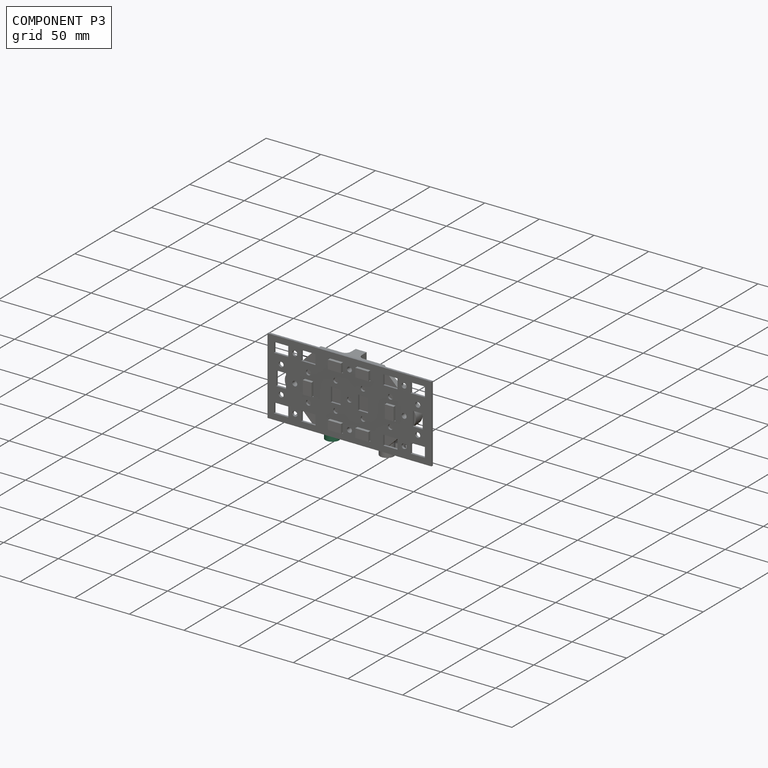
[diagram: component P3 — assembled]
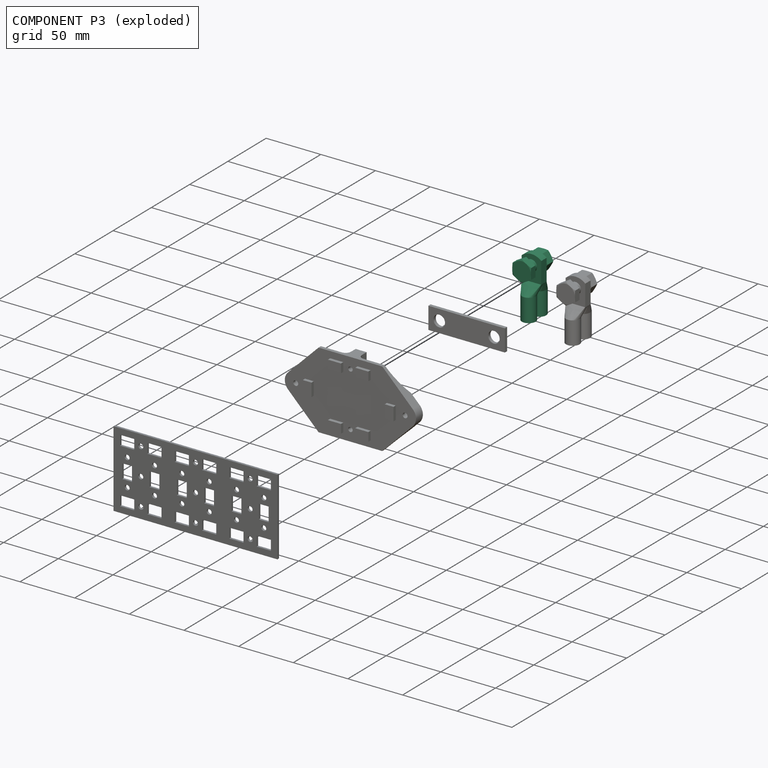
[diagram: component P3 — exploded]
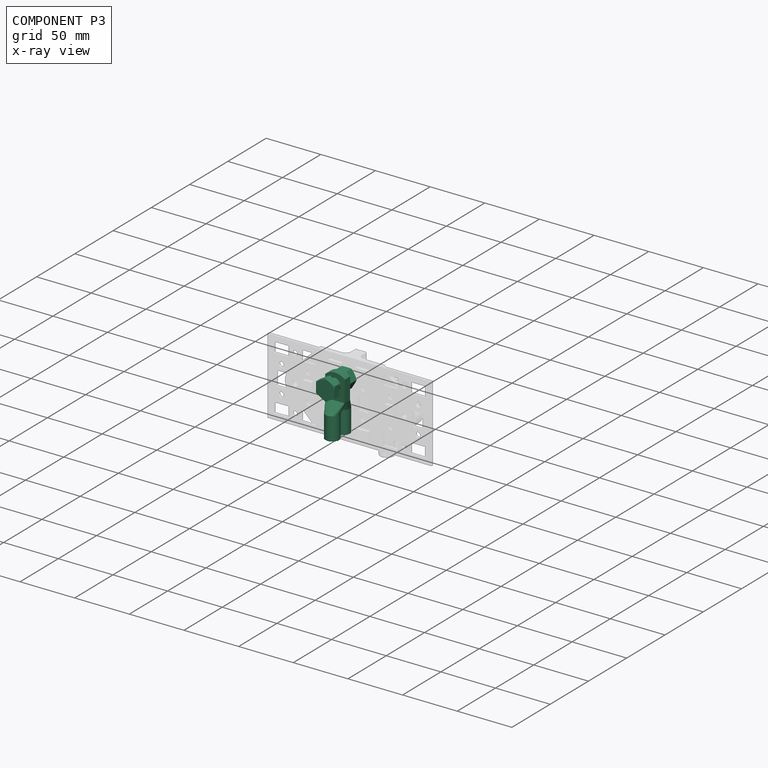
[diagram: component P3 — x-ray view]
COMPONENT P3 — recipe-attached ("Lug001", modeled in this document).
Held by: resting contact with P0 (derived edge); resting contact with P1 (derived edge); resting contact with P2 (derived edge).
Construction recipe (the document's own serialized feature program — sketch geometry with constraints, then the solid features built on it; lengths are millimeters unless a unit is written):

FEATURE [PartDesign::FeatureBase] Clone
  BaseFeature = -> Part__Feature
  Placement = pos=(25,20,0) rot=(0,0,1;0rad)
  Suppressed = false
FEATURE [PartDesign::Body] Body003  label="cosse_bot"
  AllowCompound = false
  Group = -> [Clone]
  Origin = -> Origin003
  Placement = pos=(50,42,0) rot=(0,0,1;3.14159rad)
  Tip = -> Clone
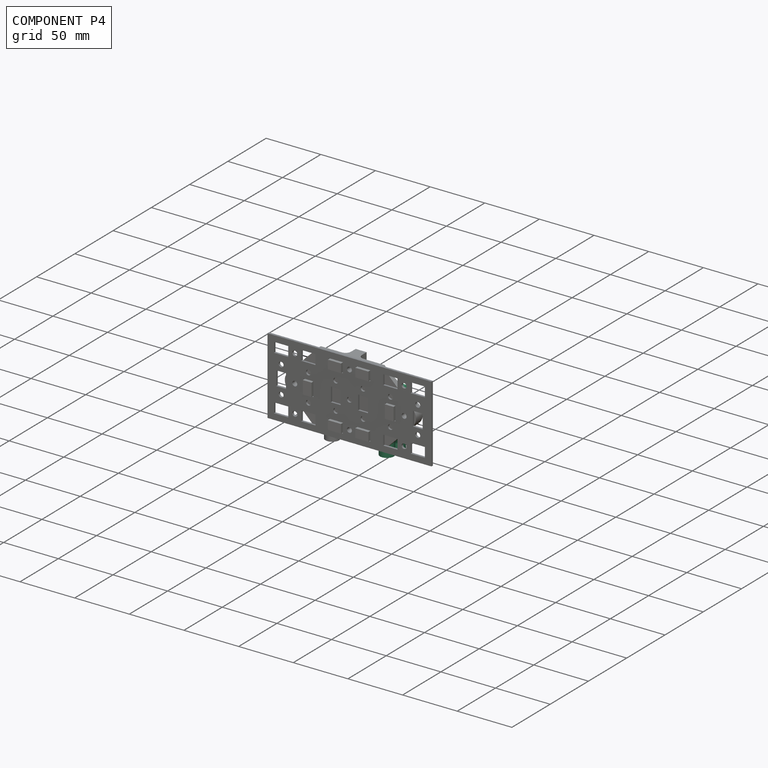
[diagram: component P4 — assembled]
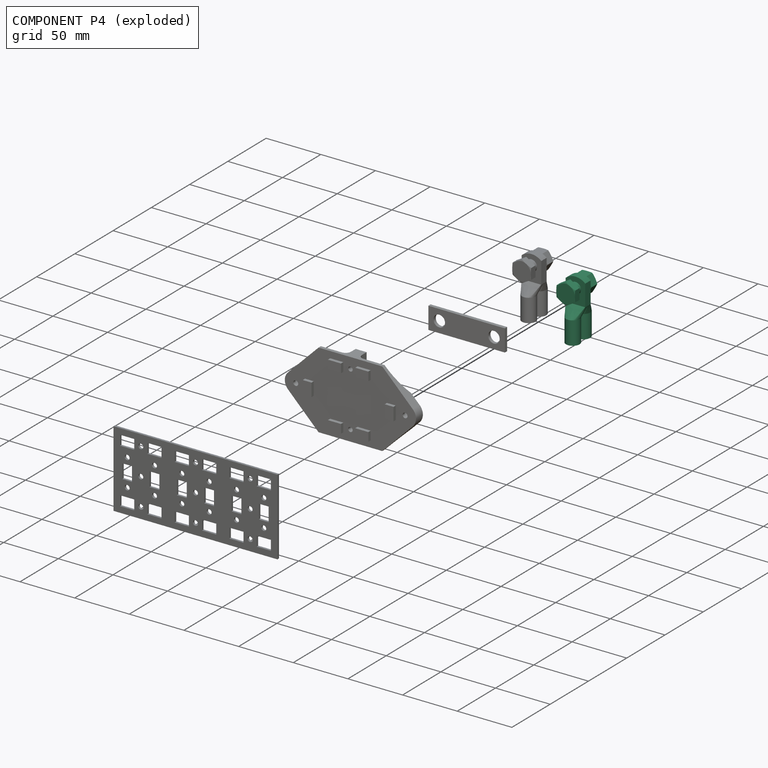
[diagram: component P4 — exploded]
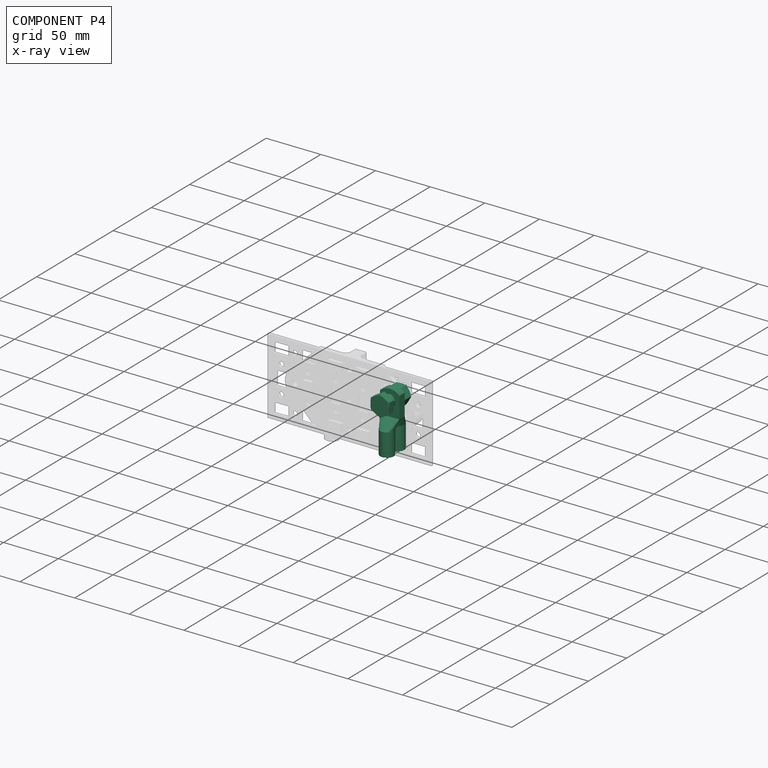
[diagram: component P4 — x-ray view]
COMPONENT P4 — same part as P3; its construction recipe is shown at P3.
Held by: resting contact with P0 (derived edge); resting contact with P1 (derived edge); resting contact with P2 (derived edge).
PROVENANCE & LICENSES
Assembly and component geometry: a FreeCAD (.FCStd) document from a public repository crawl; components, placements and joints were extracted with FreeCAD and each solid tessellated.
Construction recipes: the document's own serialized feature recipes (and, for linked parts, the recipes of companion documents from the same project).
License: mit.
Joints: native FreeCAD joints and A2plus constraints are mapped to standard mate types; edges marked 'derived from contact' connect touching components and are measured from the geometry, not modeled.
Verification: 5 of this assembly's 5 components carry a construction recipe (5 from this document itself); the rest are geometry-only. Every component's tessellation passed the extraction mesh gates (mesh-volume checksum against the B-rep where available, bounding-box inflation <= 2%).
Renders: orthographic iso camera (az 35 / el 25); the floor grid conveys scale (grid pitch printed in each image; no ruler). In the exploded view each component is displaced by its stored offset vector: the offsets alone carry the explosion direction (mate normal/axis signs are not orientation cues and do not encode it), and separation distances are assigned per mate-chain, not proportionally to assembly-order depth.
